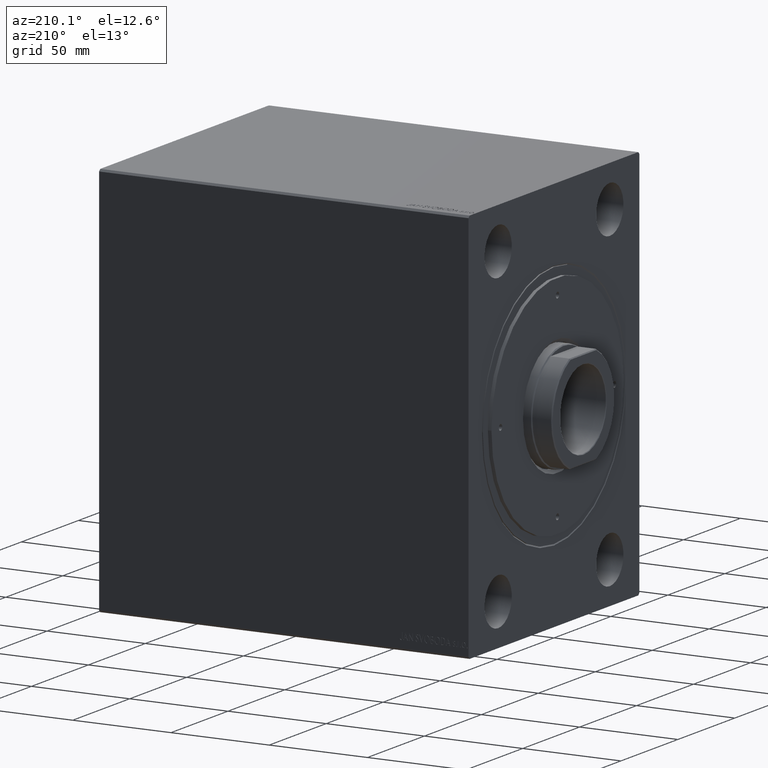
[diagram: clean part render]
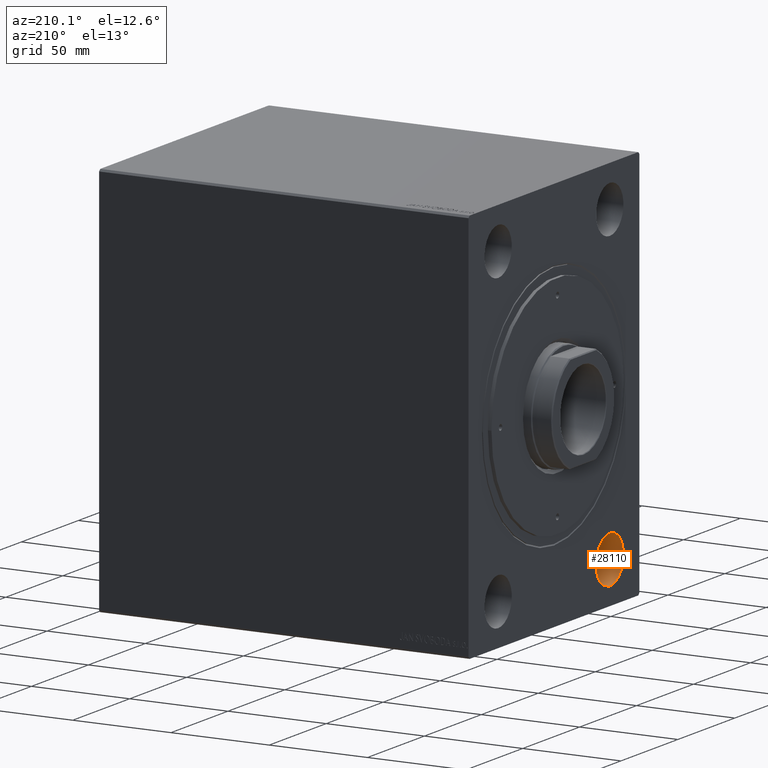
[diagram: same view with one face highlighted and labeled with its STEP entity id]
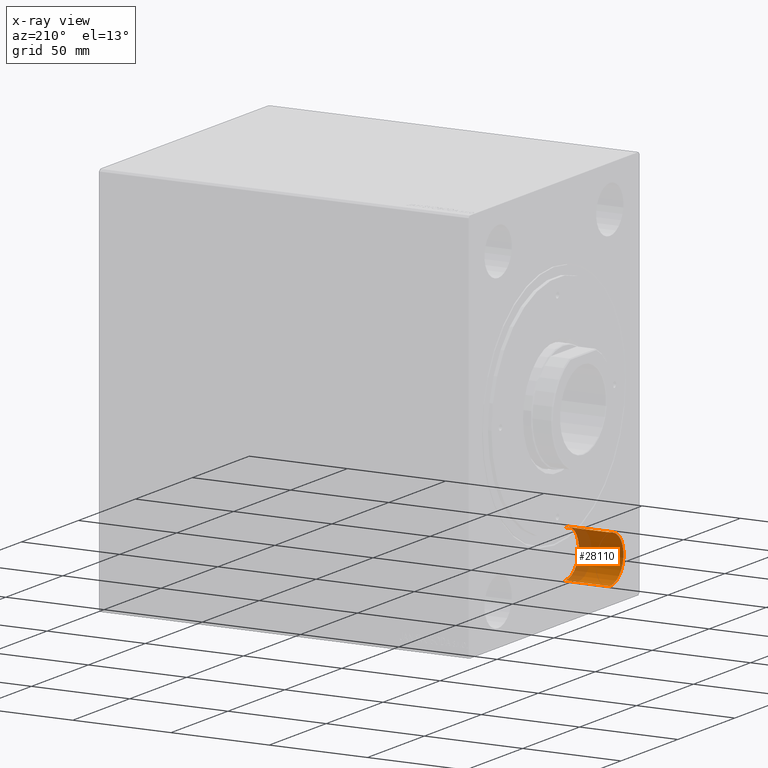
[diagram: x-ray of the same camera — body ghosted, the highlighted face saturated]
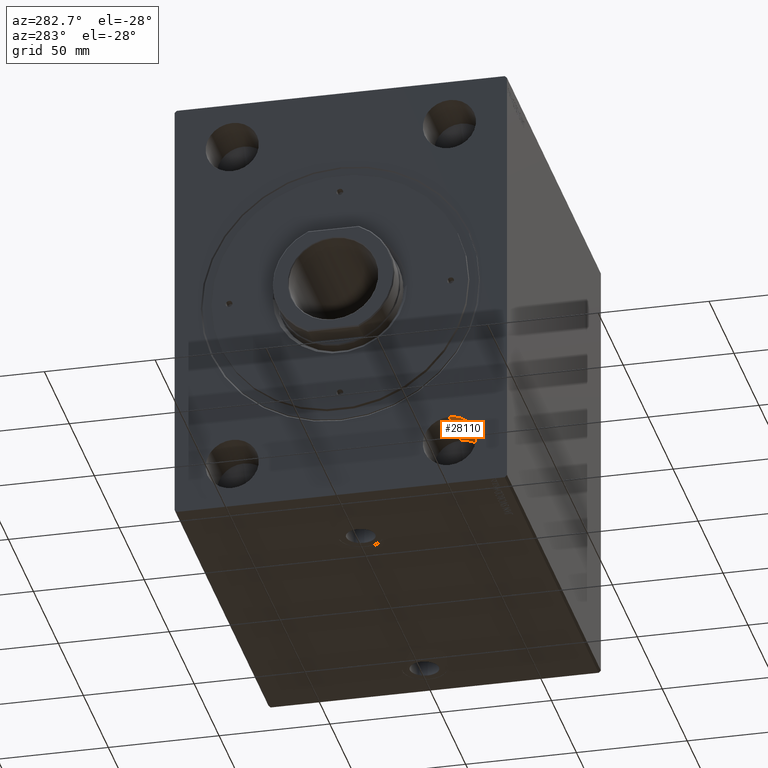
[diagram: same view with one face highlighted and labeled with its STEP entity id]
A machine part, auxiliary view. The second image highlights one B-rep face of the part: STEP entity #28110.
The next image is the same camera in x-ray: the body ghosted, the highlighted face saturated — about 28% of this face is hidden behind the body in this view.
A second angle (auxiliary view) of the same face is appended — the face is thin or edge-on in the first view.
In plain terms, the highlighted cylindrical surface (edge-blend (fillet) strip) has radius 12 mm, axis along (-1, -0, -0).
Its self-contained STEP definition (entity closure, byte-faithful):
#4054 = ORIENTED_EDGE ( 'NONE', *, *, #21218, .T. ) ;
#6260 = VECTOR ( 'NONE', #41610, 1000.000000000000000 ) ;
#6728 = CARTESIAN_POINT ( 'NONE',  ( 0.000000000000000000, -49.00000000000000000, -79.00000000000000000 ) ) ;
#7893 = EDGE_CURVE ( 'NONE', #35402, #11263, #33258, .T. ) ;
#9691 = CARTESIAN_POINT ( 'NONE',  ( 0.000000000000000000, -49.00000000000000000, -67.00000000000000000 ) ) ;
#10434 = CARTESIAN_POINT ( 'NONE',  ( 22.67000000000000171, -49.00000000000000000, -91.00000000000000000 ) ) ;
#10470 = LINE ( 'NONE', #38478, #6260 ) ;
#11141 = CARTESIAN_POINT ( 'NONE',  ( 9.797174393178825657E-16, -49.00000000000000000, -91.00000000000000000 ) ) ;
#11263 = VERTEX_POINT ( 'NONE', #33783 ) ;
#13778 = ORIENTED_EDGE ( 'NONE', *, *, #30015, .T. ) ;
#14206 = DIRECTION ( 'NONE',  ( 0.000000000000000000, 0.000000000000000000, 1.000000000000000000 ) ) ;
#15324 = DIRECTION ( 'NONE',  ( 0.000000000000000000, 0.000000000000000000, 1.000000000000000000 ) ) ;
#15433 = EDGE_LOOP ( 'NONE', ( #16372, #13778, #4054, #23251 ) ) ;
#16372 = ORIENTED_EDGE ( 'NONE', *, *, #28418, .F. ) ;
#17326 = CARTESIAN_POINT ( 'NONE',  ( 22.67000000000000171, -49.00000000000000000, -79.00000000000000000 ) ) ;
#19026 = CIRCLE ( 'NONE', #19719, 11.99999999999999645 ) ;
#19034 = VERTEX_POINT ( 'NONE', #10434 ) ;
#19719 = AXIS2_PLACEMENT_3D ( 'NONE', #17326, #30661, #14206 ) ;
#21218 = EDGE_CURVE ( 'NONE', #31778, #11263, #28014, .T. ) ;
#22215 = DIRECTION ( 'NONE',  ( -1.000000000000000000, -0.000000000000000000, -0.000000000000000000 ) ) ;
#22433 = CARTESIAN_POINT ( 'NONE',  ( 9.797174393178825657E-16, -49.00000000000000000, -79.00000000000000000 ) ) ;
#23251 = ORIENTED_EDGE ( 'NONE', *, *, #7893, .F. ) ;
#26085 = FACE_OUTER_BOUND ( 'NONE', #15433, .T. ) ;
#28014 = CIRCLE ( 'NONE', #33019, 11.99999999999999645 ) ;
#28110 = ADVANCED_FACE ( 'NONE', ( #26085 ), #37186, .F. ) ;
#28418 = EDGE_CURVE ( 'NONE', #19034, #35402, #19026, .T. ) ;
#28606 = VECTOR ( 'NONE', #36610, 1000.000000000000000 ) ;
#29636 = DIRECTION ( 'NONE',  ( -1.000000000000000000, -0.000000000000000000, -0.000000000000000000 ) ) ;
#30015 = EDGE_CURVE ( 'NONE', #19034, #31778, #10470, .T. ) ;
#30661 = DIRECTION ( 'NONE',  ( -1.000000000000000000, -0.000000000000000000, -0.000000000000000000 ) ) ;
#31006 = CARTESIAN_POINT ( 'NONE',  ( 22.67000000000000171, -49.00000000000000000, -67.00000000000000000 ) ) ;
#31778 = VERTEX_POINT ( 'NONE', #11141 ) ;
#33019 = AXIS2_PLACEMENT_3D ( 'NONE', #22433, #22215, #15324 ) ;
#33258 = LINE ( 'NONE', #9691, #28606 ) ;
#33783 = CARTESIAN_POINT ( 'NONE',  ( 9.797174393178825657E-16, -49.00000000000000000, -67.00000000000000000 ) ) ;
#33865 = AXIS2_PLACEMENT_3D ( 'NONE', #6728, #29636, #43234 ) ;
#35402 = VERTEX_POINT ( 'NONE', #31006 ) ;
#36610 = DIRECTION ( 'NONE',  ( -1.000000000000000000, -0.000000000000000000, -0.000000000000000000 ) ) ;
#37186 = CYLINDRICAL_SURFACE ( 'NONE', #33865, 11.99999999999999645 ) ;
#38478 = CARTESIAN_POINT ( 'NONE',  ( 0.000000000000000000, -49.00000000000000000, -91.00000000000000000 ) ) ;
#41610 = DIRECTION ( 'NONE',  ( -1.000000000000000000, -0.000000000000000000, -0.000000000000000000 ) ) ;
#43234 = DIRECTION ( 'NONE',  ( 0.000000000000000000, 0.000000000000000000, 1.000000000000000000 ) ) ;